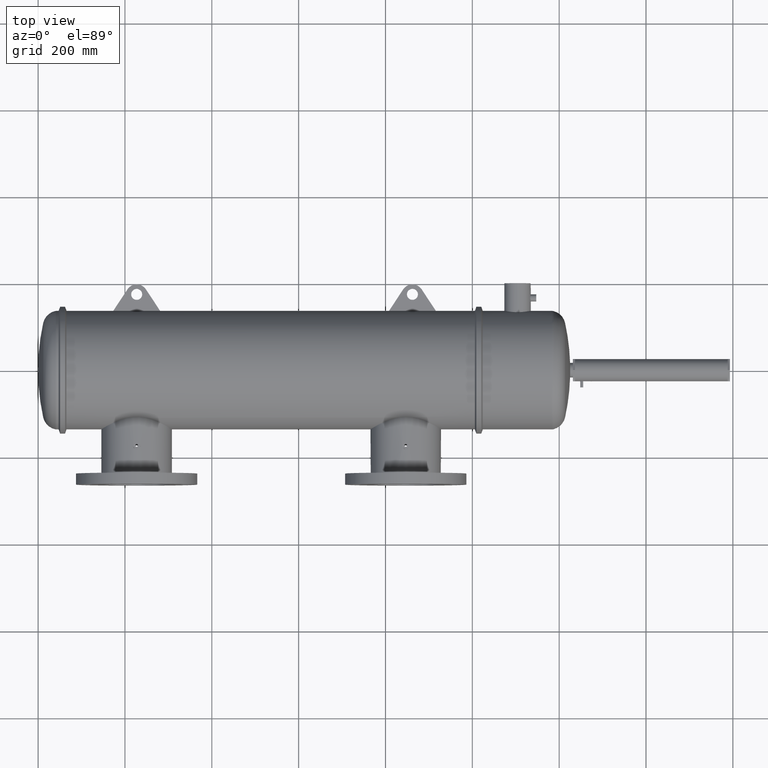
[diagram: clean part render]
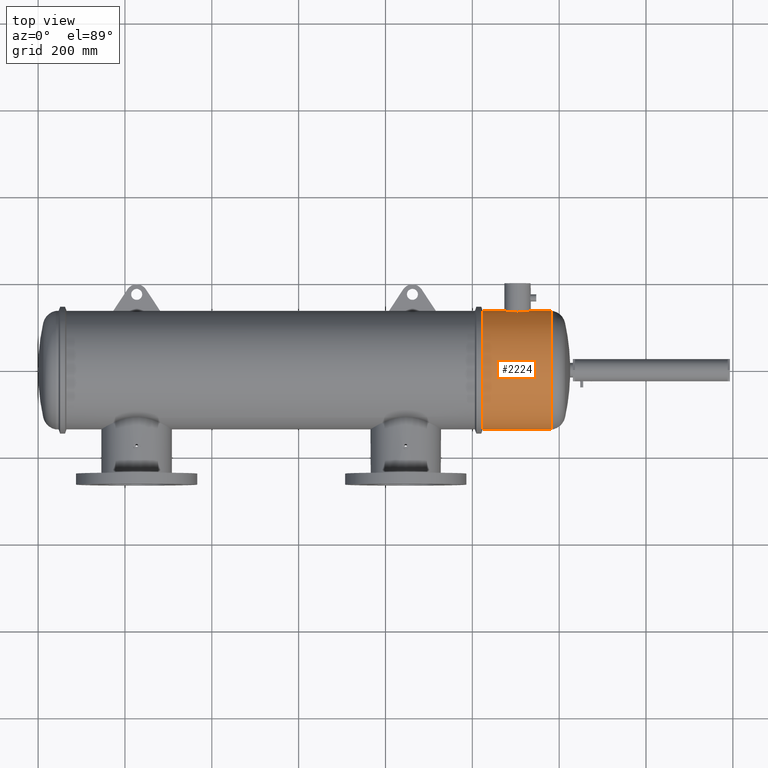
[diagram: same view with one face highlighted and labeled with its STEP entity id]
A machine part, top view. The second image highlights one B-rep face of the part: STEP entity #2224.
In plain terms, the highlighted cylindrical surface (partial cylindrical patch) has radius 136.525 mm, axis along (-1, 0, -0).
Its self-contained STEP definition (entity closure, byte-faithful):
#19 = CARTESIAN_POINT ( 'NONE',  ( 42.33294822337237700, 5.361606662475744600, 0.3862613212317005900 ) ) ;
#99 = CARTESIAN_POINT ( 'NONE',  ( 40.31679101743419800, 2.693680906626827900, 4.664587430458845500 ) ) ;
#141 = CARTESIAN_POINT ( 'NONE',  ( 5.449043687756049300E-006, -5.375007825107883400, 0.0000000000000000000 ) ) ;
#222 = CARTESIAN_POINT ( 'NONE',  ( 5.449043696650528900E-006, 5.375008454369183400, 6.582486513721764500E-016 ) ) ;
#295 = B_SPLINE_CURVE_WITH_KNOTS ( 'NONE', 3,
 ( #1133, #5779, #1159, #5821, #2304, #4551, #1722, #5148, #1651, #5715, #6377, #2894, #4058, #2222, #2810, #6888, #1311, #5877, #2349, #2452, #4139, #4694, #99, #3552, #3524, #1206, #1773, #4113, #4734, #7086, #1257, #5923, #5289, #3032 ),
 .UNSPECIFIED., .F., .F.,
 ( 4, 2, 2, 2, 2, 2, 2, 2, 2, 2, 2, 2, 2, 2, 2, 2, 4 ),
 ( 0.0000000000000000000, 0.03124999999999999300, 0.06249999999999998600, 0.09374999999999997200, 0.1249999999999999700, 0.1562499999999999700, 0.1874999999999999400, 0.2187499999999999700, 0.2500000000000000000, 0.2812500000000000600, 0.3125000000000000600, 0.3437500000000000600, 0.3750000000000000000, 0.4062500000000000000, 0.4375000000000000000, 0.4687500000000000000, 0.5000000000000000000 ),
 .UNSPECIFIED. ) ;
#342 = LINE ( 'NONE', #141, #4570 ) ;
#389 = CARTESIAN_POINT ( 'NONE',  ( 42.83528376694049900, 5.278084049873283900, 1.016380692817802100 ) ) ;
#461 = CARTESIAN_POINT ( 'NONE',  ( 43.54672998407934900, 5.240063447585573200, 1.196850393700786400 ) ) ;
#475 = CARTESIAN_POINT ( 'NONE',  ( 44.62500853081232300, 5.366162635532972100, 0.3105274647572828200 ) ) ;
#508 = CARTESIAN_POINT ( 'NONE',  ( 43.74114369147724800, 5.247009327884750700, 1.166049624495855400 ) ) ;
#522 = CARTESIAN_POINT ( 'NONE',  ( 42.86877713160540500, 5.274155725726219900, 1.036511407449816700 ) ) ;
#532 = CARTESIAN_POINT ( 'NONE',  ( 44.60790843401265700, 5.362511849683518700, 0.3667911575765825900 ) ) ;
#555 = CARTESIAN_POINT ( 'NONE',  ( 44.34177703735887400, 5.312320162437780300, 0.8186490458132369400 ) ) ;
#584 = CARTESIAN_POINT ( 'NONE',  ( 42.51872114219975900, 5.325383566464163100, 0.7293381850293413300 ) ) ;
#610 = CARTESIAN_POINT ( 'NONE',  ( 42.27354579133530900, 5.374580543801069000, 0.07845235729103133800 ) ) ;
#652 = CARTESIAN_POINT ( 'NONE',  ( 42.43215296477080800, 5.341526711640887500, 0.6000109950129533000 ) ) ;
#738 = DIRECTION ( 'NONE',  ( -1.000000000000000000, 8.273921759108280900E-016, -0.0000000000000000000 ) ) ;
#1023 = CARTESIAN_POINT ( 'NONE',  ( 44.10162991119693700, 5.278077669809230900, 1.016416534790470300 ) ) ;
#1053 = CARTESIAN_POINT ( 'NONE',  ( 43.62468116832172900, 5.241817222118851500, 1.189251550107177900 ) ) ;
#1072 = CARTESIAN_POINT ( 'NONE',  ( 43.85431819419898900, 5.254116483510381700, 1.133627732251457600 ) ) ;
#1133 = CARTESIAN_POINT ( 'NONE',  ( 40.31679090689139100, -5.374999483503978900, -6.582486513721764500E-016 ) ) ;
#1153 = CARTESIAN_POINT ( 'NONE',  ( 42.99193228530534600, 5.261657319114944700, 1.098060426732371000 ) ) ;
#1156 = CARTESIAN_POINT ( 'NONE',  ( 42.59500886222731700, 5.312348472651225800, 0.8184654178347874300 ) ) ;
#1159 = CARTESIAN_POINT ( 'NONE',  ( 40.31679101743419800, -5.340343474620064000, 0.7035760376131421400 ) ) ;
#1175 = CARTESIAN_POINT ( 'NONE',  ( 43.39017207427842500, 5.240501471402402500, 1.194937626201547400 ) ) ;
#1206 = CARTESIAN_POINT ( 'NONE',  ( 40.31679101743419800, 4.049447991477441300, 3.551938138618346400 ) ) ;
#1257 = CARTESIAN_POINT ( 'NONE',  ( 40.31679101743419800, 5.203081531096714200, 1.393641590563868200 ) ) ;
#1311 = CARTESIAN_POINT ( 'NONE',  ( 40.31679101743419100, -0.3517920535557308400, 5.374991456530656500 ) ) ;
#1365 = CARTESIAN_POINT ( 'NONE',  ( 40.31679090689141300, 5.375000112765211400, 6.582476298203202000E-016 ) ) ;
#1403 = EDGE_CURVE ( 'NONE', #4606, #1975, #295, .T. ) ;
#1584 = EDGE_CURVE ( 'NONE', #5882, #4642, #2290, .T. ) ;
#1610 = CARTESIAN_POINT ( 'NONE',  ( 44.63451983563913900, 5.368226940698209000, 0.2726251358093048600 ) ) ;
#1630 = CARTESIAN_POINT ( 'NONE',  ( 44.58127661329125900, 5.356914113079705300, 0.4410441908148410300 ) ) ;
#1651 = CARTESIAN_POINT ( 'NONE',  ( 40.31679101743419800, -4.049447362216209700, 3.551938138618345500 ) ) ;
#1690 = VERTEX_POINT ( 'NONE', #2781 ) ;
#1722 = CARTESIAN_POINT ( 'NONE',  ( 40.31679101743419100, -4.664587115828227000, 2.693680591996213500 ) ) ;
#1770 = CARTESIAN_POINT ( 'NONE',  ( 43.25308439848765800, 5.244453290346784900, 1.177472303685209500 ) ) ;
#1772 = ORIENTED_EDGE ( 'NONE', *, *, #4715, .F. ) ;
#1773 = CARTESIAN_POINT ( 'NONE',  ( 40.31679101743419800, 4.273697009153849500, 3.278689919970003700 ) ) ;
#1957 = B_SPLINE_CURVE_WITH_KNOTS ( 'NONE', 3,
 ( #6296, #461, #1053, #508, #7422, #1072, #6881, #2148, #3949, #7480, #1023, #4575, #5098, #3417, #555, #5136, #2234, #2832, #7377, #5075, #4499, #1630, #5706, #3922, #532, #475, #1610, #2211, #5683, #3989, #6256, #4541, #6803, #3969 ),
 .UNSPECIFIED., .F., .F.,
 ( 4, 2, 2, 2, 2, 2, 2, 2, 2, 2, 2, 2, 2, 2, 2, 2, 4 ),
 ( 0.09534332279010204700, 0.1013022513086750500, 0.1042817155679612300, 0.1072611798272474200, 0.1102406440865336000, 0.1132201083458197800, 0.1191790368643926800, 0.1206687689940357900, 0.1221585011236789000, 0.1251379653829651200, 0.1310968939015375000, 0.1325866260311808200, 0.1340763581608240800, 0.1370558224201105000, 0.1400352866793969100, 0.1415250188090400900, 0.1430147509386832900 ),
 .UNSPECIFIED. ) ;
#1975 = VERTEX_POINT ( 'NONE', #1365 ) ;
#2008 = EDGE_LOOP ( 'NONE', ( #5760, #3437, #4087, #1772, #4350, #5665, #4382 ) ) ;
#2148 = CARTESIAN_POINT ( 'NONE',  ( 43.96312165390648400, 5.263235487868879400, 1.090550925088800600 ) ) ;
#2211 = CARTESIAN_POINT ( 'NONE',  ( 44.64981027753962200, 5.371568936960807500, 0.1960410903198791500 ) ) ;
#2215 = CARTESIAN_POINT ( 'NONE',  ( 42.97400955688753000, 5.263311893769966300, 1.090108967618680400 ) ) ;
#2222 = CARTESIAN_POINT ( 'NONE',  ( 40.31679101743419800, -1.731906096226528900, 5.100469705049095900 ) ) ;
#2224 = ADVANCED_FACE ( 'NONE', ( #2807 ), #7353, .T. ) ;
#2234 = CARTESIAN_POINT ( 'NONE',  ( 44.38103530226085500, 5.318916533930055500, 0.7746471241784765900 ) ) ;
#2290 = LINE ( 'NONE', #222, #2846 ) ;
#2304 = CARTESIAN_POINT ( 'NONE',  ( 40.31679101743419800, -5.100469390418481900, 1.731906410857145100 ) ) ;
#2345 = CARTESIAN_POINT ( 'NONE',  ( 43.27247442014129300, 5.243691569780444300, 1.180857079370101000 ) ) ;
#2349 = CARTESIAN_POINT ( 'NONE',  ( 40.31679101743419800, 0.7035763522437572500, 5.340343789250681500 ) ) ;
#2446 = DIRECTION ( 'NONE',  ( 1.626400063489185800E-015, 1.000000000000000000, 0.0000000000000000000 ) ) ;
#2452 = CARTESIAN_POINT ( 'NONE',  ( 40.31679101743419800, 1.393641905194481700, 5.203081216466098400 ) ) ;
#2481 = CIRCLE ( 'NONE', #2577, 5.375008139738533900 ) ;
#2577 = AXIS2_PLACEMENT_3D ( 'NONE', #6478, #738, #2446 ) ;
#2781 = CARTESIAN_POINT ( 'NONE',  ( 46.55243624143494000, -5.375007825107923400, 0.0000000000000000000 ) ) ;
#2807 = FACE_OUTER_BOUND ( 'NONE', #2008, .T. ) ;
#2810 = CARTESIAN_POINT ( 'NONE',  ( 40.31679101743419100, -1.393641275933250600, 5.203081216466097600 ) ) ;
#2832 = CARTESIAN_POINT ( 'NONE',  ( 44.41844692543603700, 5.325420237550087400, 0.7290794178308179800 ) ) ;
#2846 = VECTOR ( 'NONE', #3104, 39.37007874015748100 ) ;
#2889 = CARTESIAN_POINT ( 'NONE',  ( 42.37814613816410500, 5.352277415933103900, 0.4951457532361952500 ) ) ;
#2894 = CARTESIAN_POINT ( 'NONE',  ( 40.31679101743421300, -2.693680277365598100, 4.664587430458844600 ) ) ;
#2914 = CARTESIAN_POINT ( 'NONE',  ( 43.42936327152627000, 5.240063447585576700, 1.196850393700787100 ) ) ;
#3015 = VERTEX_POINT ( 'NONE', #6068 ) ;
#3032 = CARTESIAN_POINT ( 'NONE',  ( 40.31679090689141300, 5.375000112765211400, 6.582476298203202000E-016 ) ) ;
#3104 = DIRECTION ( 'NONE',  ( -1.000000000000000000, 8.273921759108280900E-016, -0.0000000000000000000 ) ) ;
#3176 = EDGE_CURVE ( 'NONE', #6048, #1975, #5824, .T. ) ;
#3397 = DIRECTION ( 'NONE',  ( -8.273921938586657100E-016, -1.000000000000000000, 0.0000000000000000000 ) ) ;
#3417 = CARTESIAN_POINT ( 'NONE',  ( 44.32828535957413900, 5.310117351413778900, 0.8328052368406256800 ) ) ;
#3437 = ORIENTED_EDGE ( 'NONE', *, *, #1584, .T. ) ;
#3442 = CARTESIAN_POINT ( 'NONE',  ( 42.27162864992635600, 5.375008454369149600, 0.03916209013525413100 ) ) ;
#3506 = B_SPLINE_CURVE_WITH_KNOTS ( 'NONE', 3,
 ( #5799, #3442, #610, #6441, #4109, #6369, #19, #2889, #6401, #652, #6957, #4031, #584, #4712, #4633, #1156, #4364, #6234, #6252, #389, #522, #4738, #3972, #2215, #1153, #3519, #4690, #1770, #2345, #7035, #6349, #1175, #2914, #5262 ),
 .UNSPECIFIED., .F., .F.,
 ( 4, 2, 2, 2, 2, 2, 2, 2, 2, 2, 2, 2, 2, 2, 2, 2, 4 ),
 ( 0.04768371107406950400, 0.05066243680632153600, 0.05364116253857356700, 0.05959861400307776800, 0.06257733973532998700, 0.06555606546758222000, 0.06853479119983443800, 0.07002415406596034000, 0.07151351693208624100, 0.07747096839658940100, 0.08044969412884070400, 0.08193905699496664700, 0.08342841986109259000, 0.08938587132559698600, 0.09087523419172308100, 0.09236459705784919000, 0.09534332279010204700 ),
 .UNSPECIFIED. ) ;
#3519 = CARTESIAN_POINT ( 'NONE',  ( 43.08227854099085600, 5.253782589095594700, 1.135527373602536200 ) ) ;
#3522 = DIRECTION ( 'NONE',  ( -1.000000000000000000, 8.273921759108280900E-016, -0.0000000000000000000 ) ) ;
#3524 = CARTESIAN_POINT ( 'NONE',  ( 40.31679101743419100, 3.551938453248960800, 4.049447676846824600 ) ) ;
#3552 = CARTESIAN_POINT ( 'NONE',  ( 40.31679101743419100, 3.278690234600618100, 4.273696694523233800 ) ) ;
#3922 = CARTESIAN_POINT ( 'NONE',  ( 44.60173536487016600, 5.361202530904584800, 0.3854472524758056900 ) ) ;
#3949 = CARTESIAN_POINT ( 'NONE',  ( 43.99844758990659000, 5.266682781108954700, 1.073836521402737200 ) ) ;
#3969 = CARTESIAN_POINT ( 'NONE',  ( 44.66532943732793400, 5.375008454369146100, 6.586353177911397100E-016 ) ) ;
#3972 = CARTESIAN_POINT ( 'NONE',  ( 42.93846116903150500, 5.266770449464362800, 1.073274749171124500 ) ) ;
#3989 = CARTESIAN_POINT ( 'NONE',  ( 44.66141098360121500, 5.374136958794585100, 0.09874110709902997300 ) ) ;
#4031 = CARTESIAN_POINT ( 'NONE',  ( 42.49552524292330700, 5.329582722788208200, 0.6980870219618429100 ) ) ;
#4058 = CARTESIAN_POINT ( 'NONE',  ( 40.31679101743421300, -2.381933633548609200, 4.831219483174310300 ) ) ;
#4087 = ORIENTED_EDGE ( 'NONE', *, *, #6676, .F. ) ;
#4109 = CARTESIAN_POINT ( 'NONE',  ( 42.28718887695773500, 5.371559854582667300, 0.1963134116525694400 ) ) ;
#4113 = CARTESIAN_POINT ( 'NONE',  ( 40.31679101743419800, 4.664587745089461300, 2.693680591996212600 ) ) ;
#4139 = CARTESIAN_POINT ( 'NONE',  ( 40.31679101743419800, 1.731906725487760900, 5.100469705049098600 ) ) ;
#4350 = ORIENTED_EDGE ( 'NONE', *, *, #3176, .T. ) ;
#4364 = CARTESIAN_POINT ( 'NONE',  ( 42.60862361372574000, 5.310125079650235100, 0.8327574404959265900 ) ) ;
#4382 = ORIENTED_EDGE ( 'NONE', *, *, #6389, .F. ) ;
#4499 = CARTESIAN_POINT ( 'NONE',  ( 44.54350939120934100, 5.349119671621904700, 0.5319410936195211300 ) ) ;
#4541 = CARTESIAN_POINT ( 'NONE',  ( 44.66483670119795600, 5.374898673551997200, 0.03962149688038536800 ) ) ;
#4551 = CARTESIAN_POINT ( 'NONE',  ( 40.31679101743419800, -4.831219168543692700, 2.381933948179224500 ) ) ;
#4570 = VECTOR ( 'NONE', #3522, 39.37007874015748100 ) ;
#4575 = CARTESIAN_POINT ( 'NONE',  ( 44.19920568773789400, 5.290374469728898400, 0.9511132162265619700 ) ) ;
#4606 = VERTEX_POINT ( 'NONE', #4609 ) ;
#4609 = CARTESIAN_POINT ( 'NONE',  ( 40.31679090689139100, -5.374999483503978900, -6.582486513721764500E-016 ) ) ;
#4633 = CARTESIAN_POINT ( 'NONE',  ( 42.56865153297332700, 5.316745779965566900, 0.7893961293651325900 ) ) ;
#4642 = VERTEX_POINT ( 'NONE', #7486 ) ;
#4690 = CARTESIAN_POINT ( 'NONE',  ( 43.15687930366335900, 5.248756778702278000, 1.158238617097945500 ) ) ;
#4694 = CARTESIAN_POINT ( 'NONE',  ( 40.31679101743419800, 2.381934262809840300, 4.831219483174309400 ) ) ;
#4712 = CARTESIAN_POINT ( 'NONE',  ( 42.55587356896640500, 5.318925173781425800, 0.7745856706407303600 ) ) ;
#4715 = EDGE_CURVE ( 'NONE', #6048, #3015, #3506, .T. ) ;
#4734 = CARTESIAN_POINT ( 'NONE',  ( 40.31679101743419800, 4.831219797804925200, 2.381933948179225900 ) ) ;
#4738 = CARTESIAN_POINT ( 'NONE',  ( 42.92079364724983700, 5.268579226509689100, 1.064367617665707800 ) ) ;
#4866 = EDGE_CURVE ( 'NONE', #1690, #5882, #2481, .T. ) ;
#5006 = DIRECTION ( 'NONE',  ( -1.000000000000000000, 8.273921759108280900E-016, -0.0000000000000000000 ) ) ;
#5075 = CARTESIAN_POINT ( 'NONE',  ( 44.50665668684676700, 5.341747718409858500, 0.6005859488672921100 ) ) ;
#5098 = CARTESIAN_POINT ( 'NONE',  ( 44.25928687146808500, 5.299119973078481000, 0.9017557436042861200 ) ) ;
#5136 = CARTESIAN_POINT ( 'NONE',  ( 44.36813537037165400, 5.316716809404577600, 0.7895911219202874600 ) ) ;
#5148 = CARTESIAN_POINT ( 'NONE',  ( 40.31679101743419800, -4.273696379892617100, 3.278689919970004100 ) ) ;
#5262 = CARTESIAN_POINT ( 'NONE',  ( 43.46847904362714100, 5.240063447585575900, 1.196850393700786800 ) ) ;
#5289 = CARTESIAN_POINT ( 'NONE',  ( 40.31679101743421300, 5.374991771161272200, 0.3517923681863467900 ) ) ;
#5393 = AXIS2_PLACEMENT_3D ( 'NONE', #6297, #6882, #3397 ) ;
#5665 = ORIENTED_EDGE ( 'NONE', *, *, #1403, .F. ) ;
#5683 = CARTESIAN_POINT ( 'NONE',  ( 44.65558944632627500, 5.372846713242616100, 0.1573593837815392100 ) ) ;
#5706 = CARTESIAN_POINT ( 'NONE',  ( 44.58842678712895200, 5.358405139046032800, 0.4225594939220191400 ) ) ;
#5715 = CARTESIAN_POINT ( 'NONE',  ( 40.31679101743419800, -3.551937823987730200, 4.049447676846825500 ) ) ;
#5760 = ORIENTED_EDGE ( 'NONE', *, *, #4866, .T. ) ;
#5779 = CARTESIAN_POINT ( 'NONE',  ( 40.31679101743418400, -5.374991141900042500, 0.3517923681863461300 ) ) ;
#5799 = CARTESIAN_POINT ( 'NONE',  ( 42.27162864992635600, 5.375008454369148800, 6.582486471133029900E-016 ) ) ;
#5821 = CARTESIAN_POINT ( 'NONE',  ( 40.31679101743419800, -5.203080901835483600, 1.393641590563866200 ) ) ;
#5824 = LINE ( 'NONE', #6719, #6266 ) ;
#5877 = CARTESIAN_POINT ( 'NONE',  ( 40.31679101743419800, 0.3517926828169623500, 5.374991456530656500 ) ) ;
#5882 = VERTEX_POINT ( 'NONE', #5899 ) ;
#5899 = CARTESIAN_POINT ( 'NONE',  ( 46.55243624143495400, 5.375008454369144300, 6.582486513721764500E-016 ) ) ;
#5923 = CARTESIAN_POINT ( 'NONE',  ( 40.31679101743419800, 5.340344103881296400, 0.7035760376131439100 ) ) ;
#6048 = VERTEX_POINT ( 'NONE', #6620 ) ;
#6068 = CARTESIAN_POINT ( 'NONE',  ( 43.46847904362714100, 5.240063447585575900, 1.196850393700786800 ) ) ;
#6234 = CARTESIAN_POINT ( 'NONE',  ( 42.67806369244824100, 5.299057817901625000, 0.9021428044444693700 ) ) ;
#6252 = CARTESIAN_POINT ( 'NONE',  ( 42.73823040562782400, 5.290312667648942500, 0.9514453303260447200 ) ) ;
#6256 = CARTESIAN_POINT ( 'NONE',  ( 44.66287610740122500, 5.374462619816090300, 0.07910222431290212000 ) ) ;
#6266 = VECTOR ( 'NONE', #5006, 39.37007874015748100 ) ;
#6296 = CARTESIAN_POINT ( 'NONE',  ( 43.46847904362714100, 5.240063447585575900, 1.196850393700786800 ) ) ;
#6297 = CARTESIAN_POINT ( 'NONE',  ( 5.449043692203289100E-006, 3.146306493459850400E-007, 0.0000000000000000000 ) ) ;
#6349 = CARTESIAN_POINT ( 'NONE',  ( 43.33126921863190300, 5.241822789901980300, 1.189123034253083900 ) ) ;
#6369 = CARTESIAN_POINT ( 'NONE',  ( 42.31023685674919900, 5.366522632195583700, 0.3115511124824038000 ) ) ;
#6377 = CARTESIAN_POINT ( 'NONE',  ( 40.31679101743419800, -3.278689605339388800, 4.273696694523232900 ) ) ;
#6389 = EDGE_CURVE ( 'NONE', #1690, #4606, #342, .T. ) ;
#6401 = CARTESIAN_POINT ( 'NONE',  ( 42.39514128206003800, 5.348830696933428700, 0.5309717369581183900 ) ) ;
#6441 = CARTESIAN_POINT ( 'NONE',  ( 42.28134907470846600, 5.372851022165864500, 0.1572980822909278400 ) ) ;
#6478 = CARTESIAN_POINT ( 'NONE',  ( 46.55243624143494700, 3.146306108288680600E-007, 0.0000000000000000000 ) ) ;
#6620 = CARTESIAN_POINT ( 'NONE',  ( 42.27162864992635600, 5.375008454369148800, 6.582486471133029900E-016 ) ) ;
#6676 = EDGE_CURVE ( 'NONE', #3015, #4642, #1957, .T. ) ;
#6719 = CARTESIAN_POINT ( 'NONE',  ( 5.449043696650528900E-006, 5.375008454369183400, 6.582486513721764500E-016 ) ) ;
#6803 = CARTESIAN_POINT ( 'NONE',  ( 44.66532943732791900, 5.375008454369146100, 0.01974899403670029100 ) ) ;
#6881 = CARTESIAN_POINT ( 'NONE',  ( 43.89105696829176400, 5.256952404893787900, 1.120446576014278100 ) ) ;
#6882 = DIRECTION ( 'NONE',  ( -1.000000000000000000, 8.273921759108280900E-016, -0.0000000000000000000 ) ) ;
#6888 = CARTESIAN_POINT ( 'NONE',  ( 40.31679101743421300, -0.7035757229825263500, 5.340343789250681500 ) ) ;
#6957 = CARTESIAN_POINT ( 'NONE',  ( 42.45224118222802900, 5.337654194190425200, 0.6334233952062059400 ) ) ;
#7035 = CARTESIAN_POINT ( 'NONE',  ( 43.31155910010183200, 5.242376115313255100, 1.186683355259659600 ) ) ;
#7086 = CARTESIAN_POINT ( 'NONE',  ( 40.31679101743419800, 5.100470019679713500, 1.731906410857145800 ) ) ;
#7353 = CYLINDRICAL_SURFACE ( 'NONE', #5393, 5.375008139738533900 ) ;
#7377 = CARTESIAN_POINT ( 'NONE',  ( 44.44171613476503100, 5.329634428742683600, 0.6976939073291671400 ) ) ;
#7422 = CARTESIAN_POINT ( 'NONE',  ( 43.77940636906203800, 5.249146975533879100, 1.156420288537645100 ) ) ;
#7480 = CARTESIAN_POINT ( 'NONE',  ( 44.06766724697128300, 5.274097777295826200, 1.036805204325802300 ) ) ;
#7486 = CARTESIAN_POINT ( 'NONE',  ( 44.66532943732793400, 5.375008454369146100, 6.586353177911397100E-016 ) ) ;